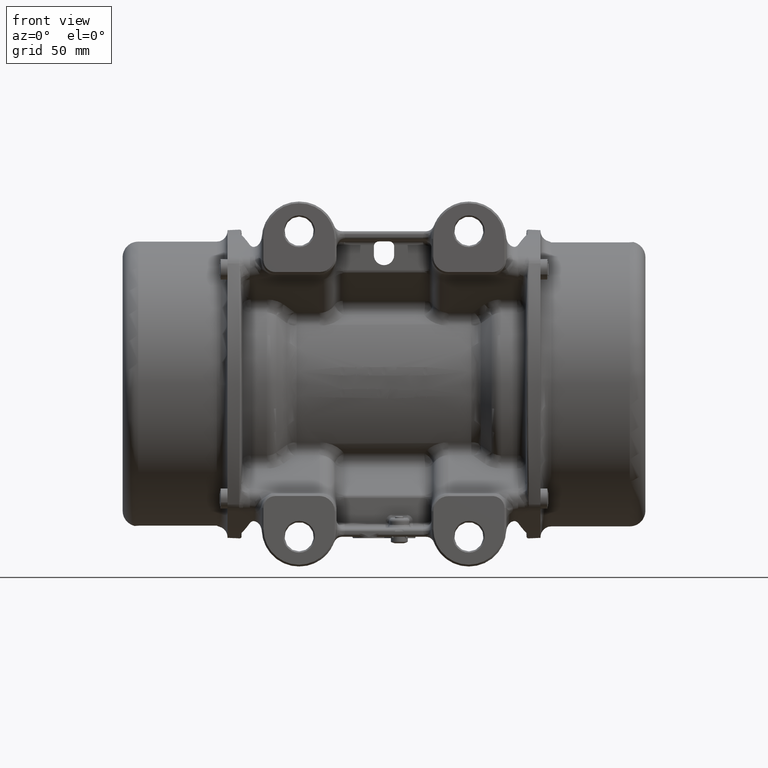
[diagram: clean part render]
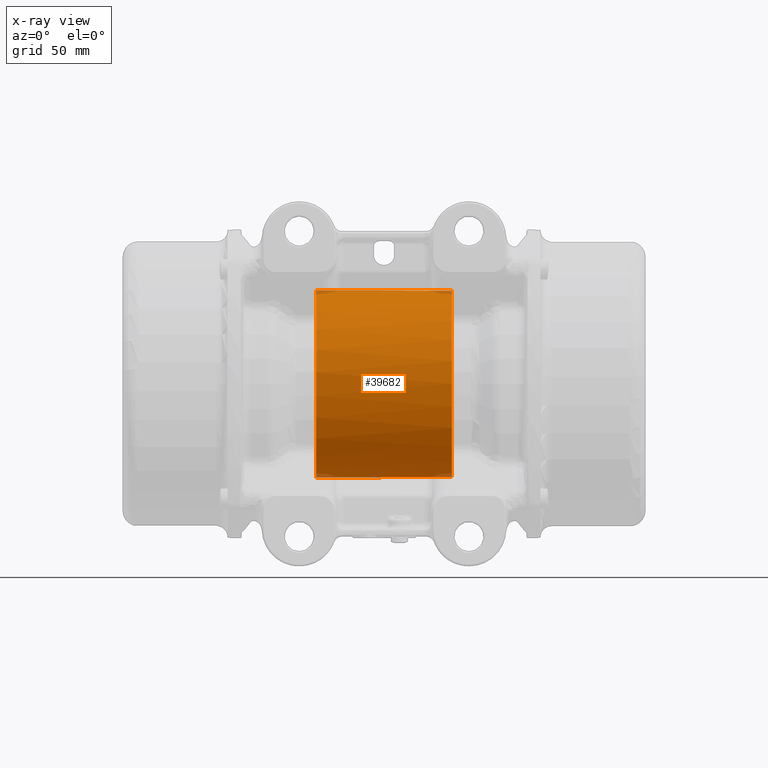
[diagram: x-ray — body ghosted, one internal face saturated and labeled with its STEP entity id]
A machine part, front view, then the same camera in x-ray: the body is ghosted and one INTERNAL B-rep face — a face not visible from any outside direction — is saturated and labeled: STEP entity #39682.
In plain terms, the highlighted cylindrical surface (bore or boss wall) has radius 55.2 mm, axis along (1, 0, 0).
Its self-contained STEP definition (entity closure, byte-faithful):
#226 = CARTESIAN_POINT ( 'NONE',  ( 35.74694576465260100, 41.57869656752910000, -36.30774010793484800 ) ) ;
#332 = CARTESIAN_POINT ( 'NONE',  ( -1.987038015383539400, 55.18774724091986200, 1.169796448368857000 ) ) ;
#1295 = ORIENTED_EDGE ( 'NONE', *, *, #7813, .F. ) ;
#1577 = CARTESIAN_POINT ( 'NONE',  ( 23.85161191306835700, 55.19997215717662400, 0.5718117369568123100 ) ) ;
#1605 = CARTESIAN_POINT ( 'NONE',  ( 8.828080934234131800, 42.21512129042131500, -35.56704338319838900 ) ) ;
#2038 = CARTESIAN_POINT ( 'NONE',  ( 23.54431040530701200, 55.15685790800752400, -2.252949050198740400 ) ) ;
#2099 = VERTEX_POINT ( 'NONE', #57742 ) ;
#2118 = CARTESIAN_POINT ( 'NONE',  ( 19.91307813441354900, 40.19297536149102300, -37.83840224780684000 ) ) ;
#2977 = CARTESIAN_POINT ( 'NONE',  ( 23.11773395249674900, 55.10012596660519800, 3.319053850759130100 ) ) ;
#3005 = CARTESIAN_POINT ( 'NONE',  ( 9.777333570779735100, 40.66541257903294600, -37.32799287688860100 ) ) ;
#3124 = CARTESIAN_POINT ( 'NONE',  ( 13.06224484391748100, 50.44664187581288000, 25.07531897438062200 ) ) ;
#3325 = VECTOR ( 'NONE', #86982, 1000.000000000000000 ) ;
#3408 = EDGE_CURVE ( 'NONE', #81553, #131561, #91430, .T. ) ;
#3956 = VERTEX_POINT ( 'NONE', #93318 ) ;
#4392 = CARTESIAN_POINT ( 'NONE',  ( 9.012907037198955300, 41.63966998489412700, -36.23898516558366400 ) ) ;
#4572 = CARTESIAN_POINT ( 'NONE',  ( 17.89361547813875900, 54.42360071865135800, -14.55015405521136400 ) ) ;
#5055 = LINE ( 'NONE', #33433, #64675 ) ;
#5767 = CYLINDRICAL_SURFACE ( 'NONE', #133742, 55.19999999999999600 ) ;
#7561 = ORIENTED_EDGE ( 'NONE', *, *, #76531, .F. ) ;
#7813 = EDGE_CURVE ( 'NONE', #33736, #100793, #87887, .T. ) ;
#8029 = CARTESIAN_POINT ( 'NONE',  ( -2.245549349864905500, 55.17888766574259300, -1.530328632593510800 ) ) ;
#8552 = DIRECTION ( 'NONE',  ( 1.000000000000000000, 1.220392953841899900E-016, 0.0000000000000000000 ) ) ;
#8700 = CARTESIAN_POINT ( 'NONE',  ( -31.15253501951245200, 53.01658658224438600, -15.37188590701616400 ) ) ;
#9046 = CARTESIAN_POINT ( 'NONE',  ( 9.111467318992707100, 41.44863757087033200, 36.45717251108697400 ) ) ;
#9905 = CARTESIAN_POINT ( 'NONE',  ( -3.689450560597351100, 55.15177302770471400, -2.307130046861670900 ) ) ;
#10001 = CARTESIAN_POINT ( 'NONE',  ( 8.806737659576132400, 42.79497268961358700, 34.86716154941884600 ) ) ;
#10300 = CARTESIAN_POINT ( 'NONE',  ( -30.38673980722447300, 53.26557116767043700, 14.48610340358797400 ) ) ;
#10372 = CARTESIAN_POINT ( 'NONE',  ( -1.752603799018653600, 55.19684874769989600, 0.6081926776155892600 ) ) ;
#10460 = CARTESIAN_POINT ( 'NONE',  ( 10.07795345129993000, 40.42950190173263500, 37.58365756177760600 ) ) ;
#10477 = B_SPLINE_CURVE_WITH_KNOTS ( 'NONE', 3,
 ( #76908, #53092, #119863, #53566, #33194, #54508, #10300, #44105, #86897, #65524, #130767, #11732, #87832, #120344, #11250, #129378 ),
 .UNSPECIFIED., .F., .F.,
 ( 4, 2, 2, 2, 2, 2, 2, 4 ),
 ( 0.0000000000000000000, 0.0005962286047909162100, 0.001192457209581832400, 0.001788685814372748600, 0.002384914419163664800, 0.002981143023954580800, 0.003577371628745497300, 0.004769828838327325400 ),
 .UNSPECIFIED. ) ;
#10849 = CARTESIAN_POINT ( 'NONE',  ( -5.170452138132356300, 55.16337329358172100, 2.012308902354663000 ) ) ;
#11250 = CARTESIAN_POINT ( 'NONE',  ( -32.59639918337673900, 52.83029433951702500, 16.00000000000000400 ) ) ;
#11312 = CARTESIAN_POINT ( 'NONE',  ( -4.609052008624803200, 55.15426276518671500, 2.246821253748706700 ) ) ;
#11378 = CARTESIAN_POINT ( 'NONE',  ( 9.058354947079701300, 43.52710127163235400, -33.94748083273719900 ) ) ;
#11715 = CARTESIAN_POINT ( 'NONE',  ( 35.74694576465260100, 41.57869656752910000, -36.30774010793484800 ) ) ;
#11732 = CARTESIAN_POINT ( 'NONE',  ( -31.47427311636368000, 52.95269487178545400, 15.59055664523569500 ) ) ;
#11797 = CARTESIAN_POINT ( 'NONE',  ( -5.851100940024367400, 55.18208389329180400, 1.411914400282767000 ) ) ;
#12544 = CARTESIAN_POINT ( 'NONE',  ( 23.78814026476473100, 55.19082247590900900, 1.149469842707386600 ) ) ;
#13074 = CARTESIAN_POINT ( 'NONE',  ( 40.00000000000000000, 42.54701481134344500, -35.16804701207220100 ) ) ;
#13150 = EDGE_CURVE ( 'NONE', #131561, #33736, #59809, .T. ) ;
#15335 = CARTESIAN_POINT ( 'NONE',  ( 10.81983769026495100, 40.07292408353643500, -37.96322537600867300 ) ) ;
#15986 = CARTESIAN_POINT ( 'NONE',  ( 13.06224484391316800, 50.44664187580942600, -25.07531897438995500 ) ) ;
#16824 = VERTEX_POINT ( 'NONE', #41851 ) ;
#18687 = CARTESIAN_POINT ( 'NONE',  ( -30.99978117295659900, 53.05346779761956800, -15.24435648257525800 ) ) ;
#18946 = CARTESIAN_POINT ( 'NONE',  ( -1.793223483788915800, 55.19518824895260400, -0.7422999547950034400 ) ) ;
#19416 = CARTESIAN_POINT ( 'NONE',  ( -1.979887624005977500, 55.18800948058689200, -1.157426044692177400 ) ) ;
#19729 = ORIENTED_EDGE ( 'NONE', *, *, #30981, .F. ) ;
#20838 = CARTESIAN_POINT ( 'NONE',  ( -2.824686910699169200, 55.16291349736892600, -2.026477990559558200 ) ) ;
#20938 = CARTESIAN_POINT ( 'NONE',  ( 8.956155020539970500, 43.35047889697859300, 34.17394417551873400 ) ) ;
#21304 = CARTESIAN_POINT ( 'NONE',  ( -4.753732914292117900, 55.15607202476989100, 2.202532450465322500 ) ) ;
#21506 = CARTESIAN_POINT ( 'NONE',  ( 101.5000000000000000, 3.435607026918164300E-014, 0.0000000000000000000 ) ) ;
#21566 = EDGE_CURVE ( 'NONE', #22492, #44344, #23369, .T. ) ;
#21677 = ORIENTED_EDGE ( 'NONE', *, *, #39941, .F. ) ;
#21990 = DIRECTION ( 'NONE',  ( 1.000000000000000000, 1.220392953841899900E-016, 0.0000000000000000000 ) ) ;
#22249 = CARTESIAN_POINT ( 'NONE',  ( -5.854835158794403900, 55.18184339590290900, -1.432116805362589900 ) ) ;
#22416 = VERTEX_POINT ( 'NONE', #116037 ) ;
#22492 = VERTEX_POINT ( 'NONE', #94037 ) ;
#23170 = CARTESIAN_POINT ( 'NONE',  ( -6.027769802657070700, 55.18823119302151500, -1.173527215368016100 ) ) ;
#23369 = CIRCLE ( 'NONE', #139819, 55.19999999999999600 ) ;
#24119 = CARTESIAN_POINT ( 'NONE',  ( 23.11773395249674900, 55.10012596660519800, -3.319053850759119900 ) ) ;
#24504 = B_SPLINE_CURVE_WITH_KNOTS ( 'NONE', 3,
 ( #118788, #32111, #43013, #129689 ),
 .UNSPECIFIED., .F., .F.,
 ( 4, 4 ),
 ( 0.0001268968777257475900, 0.02387769832308420800 ),
 .UNSPECIFIED. ) ;
#24567 = VERTEX_POINT ( 'NONE', #53145 ) ;
#24571 = CARTESIAN_POINT ( 'NONE',  ( 23.11773395249674900, 55.10012596660519800, 3.319053850759130100 ) ) ;
#24744 = CARTESIAN_POINT ( 'NONE',  ( -33.00000000000000000, 52.83029433951699600, 16.00000000000000000 ) ) ;
#25942 = B_SPLINE_CURVE_WITH_KNOTS ( 'NONE', 3,
 ( #107054, #118995, #75115, #74653, #42304, #118532, #40894, #53155, #129440, #64202, #9905, #138955, #86039, #20838, #62319, #8029, #73705, #19416, #30421, #18946, #95108, #117129, #51767, #117604, #120884, #10372, #108456, #120400, #332, #43224, #45093, #98388, #76964, #108929, #140803, #76512, #53638, #55511, #109881, #11312, #21304, #32782, #10849, #54572, #99328, #97465, #11797, #75572, #32327, #98869, #109405, #119467, #44172, #76036, #87430, #77432, #33727, #23170, #22249, #33261 ),
 .UNSPECIFIED., .T., .F.,
 ( 4, 2, 2, 2, 2, 2, 2, 2, 2, 2, 2, 2, 2, 2, 2, 2, 2, 2, 2, 2, 2, 2, 2, 2, 2, 2, 2, 2, 2, 4 ),
 ( 0.0000000000000000000, 0.0004539464512785690900, 0.0009078929025571386100, 0.001361839353835708000, 0.001815785805114277600, 0.002269732256392847100, 0.002723678707671416500, 0.003631571610228555700, 0.004085518061507125600, 0.004539464512785695800, 0.004993410964064265300, 0.005447357415342834700, 0.005901303866621405000, 0.006355250317899974400, 0.006809196769178544600, 0.007263143220457114900, 0.007717089671735684300, 0.008171036123014252900, 0.009078929025571393400, 0.009532875476849960200, 0.009986821928128528800, 0.01044076837940709600, 0.01089471483068566200, 0.01134866128196423100, 0.01180260773324279800, 0.01225655418452136500, 0.01271050063579993500, 0.01316444708707850300, 0.01361839353835707200, 0.01452628644091421100 ),
 .UNSPECIFIED. ) ;
#26313 = CARTESIAN_POINT ( 'NONE',  ( 9.875399509827582600, 40.58549866814140500, -37.41482848362941400 ) ) ;
#26795 = CARTESIAN_POINT ( 'NONE',  ( 11.69137069625126600, 39.89955491730370300, -38.14532794569356600 ) ) ;
#28865 = AXIS2_PLACEMENT_3D ( 'NONE', #94212, #105658, #73262 ) ;
#30421 = CARTESIAN_POINT ( 'NONE',  ( -1.908940177586634400, 55.19068451334610600, -1.023795882245004600 ) ) ;
#30513 = CARTESIAN_POINT ( 'NONE',  ( 10.95910005847187700, 40.02800691098693200, 38.01054211882426200 ) ) ;
#30981 = EDGE_CURVE ( 'NONE', #41900, #72092, #66318, .T. ) ;
#31355 = CARTESIAN_POINT ( 'NONE',  ( 38.29592242179560200, 42.02465479041535400, 35.79084159329924800 ) ) ;
#31934 = CARTESIAN_POINT ( 'NONE',  ( 8.871663451221010600, 42.02266091464816400, 35.79416469147597000 ) ) ;
#32111 = CARTESIAN_POINT ( 'NONE',  ( 27.83001194953311200, 40.77490700410231000, 37.22821938487482600 ) ) ;
#32327 = CARTESIAN_POINT ( 'NONE',  ( -6.090917268736136600, 55.19067899621504100, 1.024129188607819400 ) ) ;
#32746 = CARTESIAN_POINT ( 'NONE',  ( 23.11773395249674900, 55.10012596660519800, 3.319053850759130100 ) ) ;
#32782 = CARTESIAN_POINT ( 'NONE',  ( -5.034511098754216500, 55.16062179345260600, 2.085481660584910500 ) ) ;
#33194 = CARTESIAN_POINT ( 'NONE',  ( -30.14932090940984100, 53.40730549933712700, 13.95472874952411300 ) ) ;
#33261 = CARTESIAN_POINT ( 'NONE',  ( -5.637024425156610600, 55.17538344035390500, -1.648351361184295300 ) ) ;
#33433 = CARTESIAN_POINT ( 'NONE',  ( 101.5000000000000000, 52.83029433951699600, -16.00000000000000000 ) ) ;
#33727 = CARTESIAN_POINT ( 'NONE',  ( -6.202547195298880200, 55.19501895794127200, -0.7545789007161534100 ) ) ;
#33736 = VERTEX_POINT ( 'NONE', #32746 ) ;
#36979 = EDGE_CURVE ( 'NONE', #16824, #52235, #42202, .T. ) ;
#37754 = CARTESIAN_POINT ( 'NONE',  ( 10.19404478550018600, 40.36605366308308600, -37.65143657650472900 ) ) ;
#39682 = ADVANCED_FACE ( 'NONE', ( #118322, #126768, #78984 ), #5767, .F. ) ;
#39941 = EDGE_CURVE ( 'NONE', #22416, #16824, #82364, .T. ) ;
#40158 = CARTESIAN_POINT ( 'NONE',  ( -31.47927075468987800, 52.95182174402299300, -15.59352119183326700 ) ) ;
#40265 = EDGE_CURVE ( 'NONE', #100793, #128793, #58694, .T. ) ;
#40406 = CARTESIAN_POINT ( 'NONE',  ( 35.74694576465260100, 41.57869656752919200, 36.30774010793474800 ) ) ;
#40894 = CARTESIAN_POINT ( 'NONE',  ( -4.595251086904439400, 55.15411204646967700, -2.250505702839246800 ) ) ;
#41189 = VERTEX_POINT ( 'NONE', #77549 ) ;
#41851 = CARTESIAN_POINT ( 'NONE',  ( 40.00000000000000000, 42.54701481134344500, 35.16804701207220100 ) ) ;
#41900 = VERTEX_POINT ( 'NONE', #24744 ) ;
#41916 = CARTESIAN_POINT ( 'NONE',  ( 10.82212754077453500, 40.07215896393482500, 37.96403208395129500 ) ) ;
#42202 = B_SPLINE_CURVE_WITH_KNOTS ( 'NONE', 3,
 ( #127094, #116166, #137987, #85543, #31355, #116638, #106076, #40406 ),
 .UNSPECIFIED., .F., .F.,
 ( 4, 2, 2, 4 ),
 ( 0.01609785146867748900, 0.01721758472109111500, 0.01833731797350474100, 0.02057678447833199600 ),
 .UNSPECIFIED. ) ;
#42304 = CARTESIAN_POINT ( 'NONE',  ( -5.022019338329519300, 55.16038771182311300, -2.091642034779955600 ) ) ;
#42396 = VERTEX_POINT ( 'NONE', #125568 ) ;
#43013 = CARTESIAN_POINT ( 'NONE',  ( 19.91307813441362400, 40.19297536149104400, 37.83840224780683300 ) ) ;
#43224 = CARTESIAN_POINT ( 'NONE',  ( -2.156350280015265400, 55.18183318514445500, 1.421673515672355700 ) ) ;
#44105 = CARTESIAN_POINT ( 'NONE',  ( -30.59989535131576900, 53.17634566012593200, 14.81028446291329300 ) ) ;
#44172 = CARTESIAN_POINT ( 'NONE',  ( -6.323739784594932800, 55.20001681504152900, 0.1454197131701008300 ) ) ;
#44344 = VERTEX_POINT ( 'NONE', #63595 ) ;
#45093 = CARTESIAN_POINT ( 'NONE',  ( -2.254857481705975400, 55.17859120684028100, 1.540939895783995700 ) ) ;
#45504 = CARTESIAN_POINT ( 'NONE',  ( 17.89361547814113300, 54.42360071865160600, 14.55015405520629000 ) ) ;
#46094 = EDGE_CURVE ( 'NONE', #3956, #2099, #5055, .T. ) ;
#47244 = CARTESIAN_POINT ( 'NONE',  ( 9.111474039992499400, 41.44871853712743400, -36.45707531330109000 ) ) ;
#48383 = AXIS2_PLACEMENT_3D ( 'NONE', #52751, #8552, #139943 ) ;
#49890 = ORIENTED_EDGE ( 'NONE', *, *, #46094, .F. ) ;
#51039 = CARTESIAN_POINT ( 'NONE',  ( -30.58928746848588200, 53.17200883265874000, -14.82770637634899200 ) ) ;
#51767 = CARTESIAN_POINT ( 'NONE',  ( -1.676213497847047800, 55.20001878061529500, -0.1464337806610539200 ) ) ;
#51869 = CARTESIAN_POINT ( 'NONE',  ( 11.99614431929414100, 39.89983304049965800, 38.14503012635130100 ) ) ;
#52235 = VERTEX_POINT ( 'NONE', #78516 ) ;
#52751 = CARTESIAN_POINT ( 'NONE',  ( -40.00000000000000000, 1.708750997231874800E-014, 0.0000000000000000000 ) ) ;
#53092 = CARTESIAN_POINT ( 'NONE',  ( -30.00000000000000700, 53.59988853262715500, 13.19593090412173800 ) ) ;
#53145 = CARTESIAN_POINT ( 'NONE',  ( 35.74694576465260100, 41.57869656752910000, -36.30774010793484800 ) ) ;
#53155 = CARTESIAN_POINT ( 'NONE',  ( -4.297251373861061400, 55.15170176775298200, -2.308818674966375300 ) ) ;
#53266 = CARTESIAN_POINT ( 'NONE',  ( 8.887413873263668100, 43.16859268827016600, 34.40350632322628900 ) ) ;
#53566 = CARTESIAN_POINT ( 'NONE',  ( -30.09330102073912600, 53.45603340027612700, 13.76701228615879000 ) ) ;
#53638 = CARTESIAN_POINT ( 'NONE',  ( -3.702887437054121400, 55.15107036745394700, 2.323669061504013600 ) ) ;
#54508 = CARTESIAN_POINT ( 'NONE',  ( -30.29657148753943800, 53.31185723454133600, 14.31504849367278000 ) ) ;
#54572 = CARTESIAN_POINT ( 'NONE',  ( -5.421765322644676900, 55.16927561820418900, 1.843412055987337700 ) ) ;
#54817 = CIRCLE ( 'NONE', #48383, 55.19999999999999600 ) ;
#54941 = CARTESIAN_POINT ( 'NONE',  ( 36.50281634971210600, 41.65543851103407700, -36.21985719444289500 ) ) ;
#55511 = CARTESIAN_POINT ( 'NONE',  ( -4.157334969011487600, 55.15111857425123500, 2.322524521871134800 ) ) ;
#55536 = CARTESIAN_POINT ( 'NONE',  ( 101.5000000000000000, 52.83029433951699600, 16.00000000000000000 ) ) ;
#55838 = CARTESIAN_POINT ( 'NONE',  ( 8.795258548952288500, 42.60141392565039100, -35.10342678603758100 ) ) ;
#55911 = B_SPLINE_CURVE_WITH_KNOTS ( 'NONE', 3,
 ( #226, #54941, #88737, #100601, #79174, #13074 ),
 .UNSPECIFIED., .F., .F.,
 ( 4, 2, 4 ),
 ( 1.206497075819070400E-006, 0.002255361555572178100, 0.004509516614068537200 ),
 .UNSPECIFIED. ) ;
#55988 = DIRECTION ( 'NONE',  ( 1.000000000000000000, 0.0000000000000000000, 0.0000000000000000000 ) ) ;
#56739 = CARTESIAN_POINT ( 'NONE',  ( 23.11773395249674900, 55.10012596660519800, -3.319053850759119900 ) ) ;
#57679 = CARTESIAN_POINT ( 'NONE',  ( 23.54200521625966800, 55.15654269956115700, 2.259195413877224100 ) ) ;
#57742 = CARTESIAN_POINT ( 'NONE',  ( -33.00000000000000000, 52.83029433951699600, -16.00000000000000000 ) ) ;
#58627 = CARTESIAN_POINT ( 'NONE',  ( 8.871658525046234100, 42.02271650734913800, -35.79409811163363000 ) ) ;
#58694 =( BOUNDED_CURVE ( )  B_SPLINE_CURVE ( 3, ( #69794, #4572, #15986, #60244 ),
 .UNSPECIFIED., .F., .T. ) 
 B_SPLINE_CURVE_WITH_KNOTS ( ( 4, 4 ),
 ( 1.672239144377841000, 2.274449106646164100 ),
 .UNSPECIFIED. ) 
 CURVE ( )  GEOMETRIC_REPRESENTATION_ITEM ( )  RATIONAL_B_SPLINE_CURVE ( ( 1.000000000000000000, 0.9700062411426927400, 0.9700062411426927400, 1.000000000000000000 ) ) 
 REPRESENTATION_ITEM ( '' )  );
#59809 =( BOUNDED_CURVE ( )  B_SPLINE_CURVE ( 3, ( #121316, #3124, #45504, #24571 ),
 .UNSPECIFIED., .F., .T. ) 
 B_SPLINE_CURVE_WITH_KNOTS ( ( 4, 4 ),
 ( 4.008736200533687300, 4.610946162801744700 ),
 .UNSPECIFIED. ) 
 CURVE ( )  GEOMETRIC_REPRESENTATION_ITEM ( )  RATIONAL_B_SPLINE_CURVE ( ( 1.000000000000000000, 0.9700062411427189400, 0.9700062411427189400, 1.000000000000000000 ) ) 
 REPRESENTATION_ITEM ( '' )  );
#60244 = CARTESIAN_POINT ( 'NONE',  ( 9.058354947079701300, 43.52710127163235400, -33.94748083273719900 ) ) ;
#61411 = ORIENTED_EDGE ( 'NONE', *, *, #40265, .F. ) ;
#62319 = CARTESIAN_POINT ( 'NONE',  ( -2.566001548493638000, 55.16932197332808100, -1.852596019848627300 ) ) ;
#63595 = CARTESIAN_POINT ( 'NONE',  ( -30.00000000000000000, 53.64736713017700300, 13.00000000000000000 ) ) ;
#63824 = CARTESIAN_POINT ( 'NONE',  ( 10.55938041023576800, 40.17545794930093500, 37.85469897735418200 ) ) ;
#64202 = CARTESIAN_POINT ( 'NONE',  ( -3.840112963478889500, 55.15112567507451000, -2.322355930313038600 ) ) ;
#64283 = CARTESIAN_POINT ( 'NONE',  ( 11.69215737932355600, 39.89956504885133600, 38.14531716003343600 ) ) ;
#64675 = VECTOR ( 'NONE', #119627, 1000.000000000000000 ) ;
#65524 = CARTESIAN_POINT ( 'NONE',  ( -30.99873120366898900, 53.05372517681262000, 15.24346518948857500 ) ) ;
#66318 = LINE ( 'NONE', #55536, #3325 ) ;
#66383 = CARTESIAN_POINT ( 'NONE',  ( 9.058354947079701300, 43.52710127163235400, -33.94748083273719900 ) ) ;
#66851 = CARTESIAN_POINT ( 'NONE',  ( 8.887414539062371300, 43.16858151922135500, -34.40351978982762700 ) ) ;
#67827 = CARTESIAN_POINT ( 'NONE',  ( 11.99614431929403900, 39.89983304049960100, -38.14503012635140100 ) ) ;
#69794 = CARTESIAN_POINT ( 'NONE',  ( 23.11773395249674900, 55.10012596660519800, -3.319053850759119900 ) ) ;
#72092 = VERTEX_POINT ( 'NONE', #86912 ) ;
#72490 = CARTESIAN_POINT ( 'NONE',  ( -32.01788336574578900, 52.87806318133919300, -15.84161906942489400 ) ) ;
#72860 = ORIENTED_EDGE ( 'NONE', *, *, #21566, .F. ) ;
#73262 = DIRECTION ( 'NONE',  ( -2.514091994169285700E-016, 1.000000000000000000, 0.0000000000000000000 ) ) ;
#73705 = CARTESIAN_POINT ( 'NONE',  ( -2.147805606675017300, 55.18212028626194900, -1.410541098585879100 ) ) ;
#74653 = CARTESIAN_POINT ( 'NONE',  ( -5.158172678821011400, 55.16311313823303700, -2.019394651096110000 ) ) ;
#75115 = CARTESIAN_POINT ( 'NONE',  ( -5.410424975044497500, 55.16898356628116300, -1.852095602762875700 ) ) ;
#75206 = CARTESIAN_POINT ( 'NONE',  ( 8.828090946281047700, 42.21509343520829600, 35.56707574435371600 ) ) ;
#75572 = CARTESIAN_POINT ( 'NONE',  ( -6.018643632593888300, 55.18795604227103300, 1.159910753626380200 ) ) ;
#76036 = CARTESIAN_POINT ( 'NONE',  ( -6.322923662811723100, 55.19998247762425300, -0.1579168889693537100 ) ) ;
#76129 = CARTESIAN_POINT ( 'NONE',  ( 9.359485046809247400, 41.08489848321174500, 36.86659871223145800 ) ) ;
#76512 = CARTESIAN_POINT ( 'NONE',  ( -3.396916016221811900, 55.15368847552110800, 2.263600994248569500 ) ) ;
#76531 = EDGE_CURVE ( 'NONE', #24567, #22416, #55911, .T. ) ;
#76908 = CARTESIAN_POINT ( 'NONE',  ( -30.00000000000000000, 53.64736713017700300, 13.00000000000000000 ) ) ;
#76964 = CARTESIAN_POINT ( 'NONE',  ( -2.587163488136567500, 55.16904291643487600, 1.850363550169414000 ) ) ;
#77432 = CARTESIAN_POINT ( 'NONE',  ( -6.247624620368206600, 55.19685797796603300, -0.6076494102478053900 ) ) ;
#77549 = CARTESIAN_POINT ( 'NONE',  ( -5.637024425156610600, 55.17538344035389700, -1.648351361184295000 ) ) ;
#77721 = CARTESIAN_POINT ( 'NONE',  ( 23.85200150178332000, 55.20002771132875100, -0.5664234141834394400 ) ) ;
#77875 = DIRECTION ( 'NONE',  ( 0.0000000000000000000, 0.0000000000000000000, -1.000000000000000000 ) ) ;
#78261 = ORIENTED_EDGE ( 'NONE', *, *, #113165, .F. ) ;
#78516 = CARTESIAN_POINT ( 'NONE',  ( 35.74694576465260100, 41.57869656752919200, 36.30774010793474800 ) ) ;
#78984 = FACE_BOUND ( 'NONE', #91581, .T. ) ;
#79118 = CARTESIAN_POINT ( 'NONE',  ( 23.79120420009166600, 55.19125516577657500, -1.131418107095359900 ) ) ;
#79141 = CARTESIAN_POINT ( 'NONE',  ( 10.55618496120112200, 40.17685221473013300, -37.85322009644934800 ) ) ;
#79174 = CARTESIAN_POINT ( 'NONE',  ( 39.33501274803339200, 42.30942253315650000, -35.45549095729932500 ) ) ;
#80523 = CARTESIAN_POINT ( 'NONE',  ( 11.24151897559808900, 39.95795989510434500, -38.08417098129649500 ) ) ;
#81553 = VERTEX_POINT ( 'NONE', #51869 ) ;
#81620 = ORIENTED_EDGE ( 'NONE', *, *, #36979, .F. ) ;
#82364 = CIRCLE ( 'NONE', #28865, 55.19999999999999600 ) ;
#83849 = ORIENTED_EDGE ( 'NONE', *, *, #100769, .F. ) ;
#84835 = CARTESIAN_POINT ( 'NONE',  ( -31.65226934474304300, 52.92397329151612000, -15.68755913421057000 ) ) ;
#84998 = ORIENTED_EDGE ( 'NONE', *, *, #87854, .F. ) ;
#85125 = EDGE_CURVE ( 'NONE', #52235, #81553, #24504, .T. ) ;
#85305 = CARTESIAN_POINT ( 'NONE',  ( -29.99999999999999600, 53.59991854906792200, -13.19580703465882400 ) ) ;
#85543 = CARTESIAN_POINT ( 'NONE',  ( 38.64817618803733300, 42.11741261556054600, 35.68176504692409200 ) ) ;
#86039 = CARTESIAN_POINT ( 'NONE',  ( -3.243480709565795400, 55.15611216523397800, -2.201522304506808900 ) ) ;
#86897 = CARTESIAN_POINT ( 'NONE',  ( -30.72451973958156300, 53.13300317008756900, 14.96479068505051300 ) ) ;
#86912 = CARTESIAN_POINT ( 'NONE',  ( -40.00000000000000000, 52.83029433951699600, 16.00000000000000000 ) ) ;
#86982 = DIRECTION ( 'NONE',  ( -1.000000000000000000, -1.220392953841899900E-016, -0.0000000000000000000 ) ) ;
#87348 = CARTESIAN_POINT ( 'NONE',  ( 27.83001194953307300, 40.77490700410231000, -37.22821938487481900 ) ) ;
#87430 = CARTESIAN_POINT ( 'NONE',  ( -6.307803975040323000, 55.19934032877454700, -0.3085380262596290100 ) ) ;
#87832 = CARTESIAN_POINT ( 'NONE',  ( -31.65087458979114700, 52.92419887149065300, 15.68679712609091000 ) ) ;
#87854 = EDGE_CURVE ( 'NONE', #44344, #41900, #10477, .T. ) ;
#87887 = B_SPLINE_CURVE_WITH_KNOTS ( 'NONE', 3,
 ( #2977, #88671, #57679, #12544, #1577, #77721, #79118, #2038, #89616, #56739 ),
 .UNSPECIFIED., .F., .F.,
 ( 4, 2, 2, 2, 4 ),
 ( 5.034359046336711200E-006, 0.001708659679808561800, 0.003412285000570787100, 0.005115910321333011800, 0.006819535642095236200 ),
 .UNSPECIFIED. ) ;
#87928 = B_SPLINE_CURVE_WITH_KNOTS ( 'NONE', 3,
 ( #117345, #107270, #126849, #116861, #72490, #84835, #40158, #8700, #18687, #51039, #94848, #106783, #128258, #127317, #85305, #139163 ),
 .UNSPECIFIED., .F., .F.,
 ( 4, 2, 2, 2, 2, 2, 2, 4 ),
 ( 0.0000000000000000000, 0.0005962177040657139500, 0.001192435408131427900, 0.001788653112197145500, 0.002384870816262863600, 0.003577306224394314000, 0.004173523928460039900, 0.004769741632525765400 ),
 .UNSPECIFIED. ) ;
#88217 = CARTESIAN_POINT ( 'NONE',  ( 8.956143034439996600, 43.35045818255912300, -34.17397073534554900 ) ) ;
#88671 = CARTESIAN_POINT ( 'NONE',  ( 23.36027950034819900, 55.13153570352174900, 2.797615953545687700 ) ) ;
#88737 = CARTESIAN_POINT ( 'NONE',  ( 37.23316908079537100, 41.77929889008563400, -36.07760273814708500 ) ) ;
#89004 = ORIENTED_EDGE ( 'NONE', *, *, #85125, .F. ) ;
#89616 = CARTESIAN_POINT ( 'NONE',  ( 23.36029846399455300, 55.13153815932088300, -2.797575184444919900 ) ) ;
#90581 = CARTESIAN_POINT ( 'NONE',  ( 11.39099993976744200, 39.93125921357913900, -38.11213801797788400 ) ) ;
#91041 = CARTESIAN_POINT ( 'NONE',  ( 9.358742686378272800, 41.08589666448538900, -36.86548119915088500 ) ) ;
#91430 = B_SPLINE_CURVE_WITH_KNOTS ( 'NONE', 3,
 ( #105237, #97554, #64283, #140455, #129064, #30513, #41916, #63824, #108088, #10460, #107610, #117694, #76129, #9046, #118153, #31934, #75206, #140903, #10001, #53266, #20938, #97097 ),
 .UNSPECIFIED., .F., .F.,
 ( 4, 2, 2, 2, 2, 2, 2, 2, 2, 2, 4 ),
 ( 0.0000000000000000000, 0.0004520396220384355200, 0.0009040792440768710300, 0.001356118866115306800, 0.001808158488153742100, 0.002712237732230617000, 0.003616316976307492400, 0.004520396220384367300, 0.005424475464461241800, 0.006328554708538118100, 0.007232633952614992600 ),
 .UNSPECIFIED. ) ;
#91505 = CARTESIAN_POINT ( 'NONE',  ( 11.84299664410981400, 39.89416240259781400, -38.15096163314961300 ) ) ;
#91581 = EDGE_LOOP ( 'NONE', ( #83849 ) ) ;
#91969 = CARTESIAN_POINT ( 'NONE',  ( 10.08349155175962500, 40.43610565051717700, -37.57623520819145600 ) ) ;
#93318 = CARTESIAN_POINT ( 'NONE',  ( -40.00000000000000000, 52.83029433951699600, -16.00000000000000000 ) ) ;
#94037 = CARTESIAN_POINT ( 'NONE',  ( -30.00000000000000000, 53.64736713017700300, -13.00000000000000000 ) ) ;
#94212 = CARTESIAN_POINT ( 'NONE',  ( 40.00000000000000000, 1.556630490420869900E-014, 0.0000000000000000000 ) ) ;
#94848 = CARTESIAN_POINT ( 'NONE',  ( -30.37034543020486400, 53.26424600448932300, -14.49471940404100500 ) ) ;
#95108 = CARTESIAN_POINT ( 'NONE',  ( -1.748938335541639700, 55.19699853709648400, -0.5944983238073509000 ) ) ;
#95557 = B_SPLINE_CURVE_WITH_KNOTS ( 'NONE', 3,
 ( #67827, #2118, #87348, #11715 ),
 .UNSPECIFIED., .F., .F.,
 ( 4, 4 ),
 ( 0.04786998696167228000, 0.07162078840703083000 ),
 .UNSPECIFIED. ) ;
#97097 = CARTESIAN_POINT ( 'NONE',  ( 9.058354947079109800, 43.52710127165665500, 33.94748083273759700 ) ) ;
#97465 = CARTESIAN_POINT ( 'NONE',  ( -5.754926090484908700, 55.17890034106777400, 1.529953322178701600 ) ) ;
#97554 = CARTESIAN_POINT ( 'NONE',  ( 11.84310213120691200, 39.89416630849542100, 38.15095754756725900 ) ) ;
#98388 = CARTESIAN_POINT ( 'NONE',  ( -2.469927444083560800, 55.17221026855904900, 1.754604632364778400 ) ) ;
#98869 = CARTESIAN_POINT ( 'NONE',  ( -6.206859735969722200, 55.19519145680198600, 0.7421109790223290300 ) ) ;
#99186 = CARTESIAN_POINT ( 'NONE',  ( 8.806749415083498200, 42.79504138083850500, -34.86707669884356900 ) ) ;
#99328 = CARTESIAN_POINT ( 'NONE',  ( -5.538783992862429200, 55.17245141308720200, 1.747113358676378500 ) ) ;
#100601 = CARTESIAN_POINT ( 'NONE',  ( 38.64928399892087900, 42.10626400944209300, -35.69545862215289800 ) ) ;
#100769 = EDGE_CURVE ( 'NONE', #41189, #41189, #25942, .T. ) ;
#100793 = VERTEX_POINT ( 'NONE', #24119 ) ;
#101504 = CARTESIAN_POINT ( 'NONE',  ( 9.507820581838410900, 40.91188928755163800, -37.05828712559682000 ) ) ;
#102456 = CARTESIAN_POINT ( 'NONE',  ( 11.99614431929403900, 39.89983304049960100, -38.14503012635140100 ) ) ;
#104181 = ORIENTED_EDGE ( 'NONE', *, *, #118400, .F. ) ;
#104576 = B_SPLINE_CURVE_WITH_KNOTS ( 'NONE', 3,
 ( #66383, #88217, #66851, #99186, #55838, #1605, #58627, #4392, #47244, #91041, #101504, #3005, #26313, #91969, #37754, #123514, #79141, #15335, #112071, #80523, #90581, #26795, #91505, #102456 ),
 .UNSPECIFIED., .F., .F.,
 ( 4, 2, 2, 2, 2, 2, 2, 2, 2, 2, 2, 4 ),
 ( 7.829532537633902000E-015, 0.0009006672202230719400, 0.001801334440438314200, 0.002702001660653556900, 0.003602668880868799200, 0.004503336101084041500, 0.004953669711191662800, 0.005404003321299284200, 0.005854336931406905500, 0.006304670541514526000, 0.006755004151622147300, 0.007205337761729768700 ),
 .UNSPECIFIED. ) ;
#105237 = CARTESIAN_POINT ( 'NONE',  ( 11.99614431929414100, 39.89983304049965800, 38.14503012635130100 ) ) ;
#105658 = DIRECTION ( 'NONE',  ( -1.000000000000000000, -3.061616997868385100E-016, -0.0000000000000000000 ) ) ;
#106076 = CARTESIAN_POINT ( 'NONE',  ( 36.49833627428877500, 41.65498365844184300, 36.22037808001328300 ) ) ;
#106783 = CARTESIAN_POINT ( 'NONE',  ( -30.15066477779424800, 53.40633078075000400, -13.95843941113313500 ) ) ;
#107054 = CARTESIAN_POINT ( 'NONE',  ( -5.637024425156610600, 55.17538344035390500, -1.648351361184295300 ) ) ;
#107270 = CARTESIAN_POINT ( 'NONE',  ( -32.79833756275063200, 52.83029433951699600, -15.99999999999999600 ) ) ;
#107610 = CARTESIAN_POINT ( 'NONE',  ( 9.872150308870685000, 40.57921718072119400, 37.42227969375554900 ) ) ;
#108088 = CARTESIAN_POINT ( 'NONE',  ( 10.43274399467683900, 40.23517402697444100, 37.79126560403709300 ) ) ;
#108365 = EDGE_CURVE ( 'NONE', #42396, #24567, #95557, .T. ) ;
#108456 = CARTESIAN_POINT ( 'NONE',  ( -1.797678144941454100, 55.19500941705264600, 0.7554473481054259100 ) ) ;
#108929 = CARTESIAN_POINT ( 'NONE',  ( -2.841449764056090300, 55.16311873123383700, 2.019275470813423300 ) ) ;
#109405 = CARTESIAN_POINT ( 'NONE',  ( -6.250379691475107100, 55.19697062552464200, 0.5971528297394667100 ) ) ;
#109765 = CARTESIAN_POINT ( 'NONE',  ( 9.058354947079109800, 43.52710127165665500, 33.94748083273759700 ) ) ;
#109881 = CARTESIAN_POINT ( 'NONE',  ( -4.311126560044232100, 55.15177836919940500, 2.307000137032200600 ) ) ;
#112071 = CARTESIAN_POINT ( 'NONE',  ( 10.95668760940304800, 40.02876651551483200, -38.00974203487565700 ) ) ;
#113165 = EDGE_CURVE ( 'NONE', #72092, #3956, #54817, .T. ) ;
#114409 = ORIENTED_EDGE ( 'NONE', *, *, #3408, .F. ) ;
#116037 = CARTESIAN_POINT ( 'NONE',  ( 40.00000000000000000, 42.54701481134344500, -35.16804701207220100 ) ) ;
#116166 = CARTESIAN_POINT ( 'NONE',  ( 39.67262634186598500, 42.43004797773213700, 35.30955585390211100 ) ) ;
#116638 = CARTESIAN_POINT ( 'NONE',  ( 37.22873444391485300, 41.77831903232112200, 36.07874537278795700 ) ) ;
#116861 = CARTESIAN_POINT ( 'NONE',  ( -32.21111343592520600, 52.86012607785907800, -15.90121877113497600 ) ) ;
#117129 = CARTESIAN_POINT ( 'NONE',  ( -1.690803743397272200, 55.19939908092144500, -0.2973497375214463900 ) ) ;
#117345 = CARTESIAN_POINT ( 'NONE',  ( -33.00000000000000000, 52.83029433951699600, -16.00000000000000000 ) ) ;
#117604 = CARTESIAN_POINT ( 'NONE',  ( -1.677126839354820200, 55.19998035281738400, 0.1602662814722903600 ) ) ;
#117694 = CARTESIAN_POINT ( 'NONE',  ( 9.509969513702310800, 40.90941711709258000, 37.06102367201342700 ) ) ;
#118153 = CARTESIAN_POINT ( 'NONE',  ( 9.013020906408908000, 41.63940345637544700, 36.23929270978104700 ) ) ;
#118322 = FACE_OUTER_BOUND ( 'NONE', #118552, .T. ) ;
#118400 = EDGE_CURVE ( 'NONE', #128793, #42396, #104576, .T. ) ;
#118532 = CARTESIAN_POINT ( 'NONE',  ( -4.740218618202377800, 55.15588776406365000, -2.207121174361907900 ) ) ;
#118552 = EDGE_LOOP ( 'NONE', ( #104181, #61411, #1295, #121915, #114409, #89004, #81620, #21677, #7561, #129710 ) ) ;
#118788 = CARTESIAN_POINT ( 'NONE',  ( 35.74694576465260100, 41.57869656752919200, 36.30774010793474800 ) ) ;
#118995 = CARTESIAN_POINT ( 'NONE',  ( -5.528119058337714400, 55.17215346257940900, -1.756468639095147800 ) ) ;
#119467 = CARTESIAN_POINT ( 'NONE',  ( -6.308944805873923500, 55.19938845269256700, 0.2994531446653874700 ) ) ;
#119627 = DIRECTION ( 'NONE',  ( 1.000000000000000000, 1.220392953841899900E-016, 0.0000000000000000000 ) ) ;
#119863 = CARTESIAN_POINT ( 'NONE',  ( -30.01900826023478800, 53.55210064948097000, 13.38845212138221000 ) ) ;
#120344 = CARTESIAN_POINT ( 'NONE',  ( -32.19677820767552800, 52.85549941833202300, 15.91734595639623300 ) ) ;
#120400 = CARTESIAN_POINT ( 'NONE',  ( -1.915240493842326000, 55.19044528058142900, 1.036588141661915200 ) ) ;
#120884 = CARTESIAN_POINT ( 'NONE',  ( -1.692671728810561300, 55.19932051675463200, 0.3114875569876099400 ) ) ;
#121316 = CARTESIAN_POINT ( 'NONE',  ( 9.058354947079109800, 43.52710127165665500, 33.94748083273759700 ) ) ;
#121915 = ORIENTED_EDGE ( 'NONE', *, *, #13150, .F. ) ;
#122258 = CARTESIAN_POINT ( 'NONE',  ( -30.00000000000000000, 1.830790292616064900E-014, 0.0000000000000000000 ) ) ;
#123514 = CARTESIAN_POINT ( 'NONE',  ( 10.42979632548907700, 40.23665354333239500, -37.78969007863518200 ) ) ;
#125568 = CARTESIAN_POINT ( 'NONE',  ( 11.99614431929403900, 39.89983304049960100, -38.14503012635140100 ) ) ;
#126353 = EDGE_CURVE ( 'NONE', #2099, #22492, #87928, .T. ) ;
#126768 = FACE_OUTER_BOUND ( 'NONE', #133875, .T. ) ;
#126849 = CARTESIAN_POINT ( 'NONE',  ( -32.60029570226959800, 52.83640142419357500, -15.97987396433800800 ) ) ;
#127094 = CARTESIAN_POINT ( 'NONE',  ( 40.00000000000000000, 42.54701481134344500, 35.16804701207220100 ) ) ;
#127317 = CARTESIAN_POINT ( 'NONE',  ( -30.01898743320870400, 53.55195960415142800, -13.38903809823085000 ) ) ;
#128258 = CARTESIAN_POINT ( 'NONE',  ( -30.09411973440759900, 53.45514450266269800, -13.77048455356572300 ) ) ;
#128793 = VERTEX_POINT ( 'NONE', #11378 ) ;
#129064 = CARTESIAN_POINT ( 'NONE',  ( 11.24583937253274100, 39.95704957159975400, 38.08512621701089500 ) ) ;
#129378 = CARTESIAN_POINT ( 'NONE',  ( -33.00000000000000000, 52.83029433951699600, 16.00000000000000000 ) ) ;
#129440 = CARTESIAN_POINT ( 'NONE',  ( -4.143249887234148300, 55.15107996899692500, -2.323441100658663500 ) ) ;
#129689 = CARTESIAN_POINT ( 'NONE',  ( 11.99614431929414100, 39.89983304049965800, 38.14503012635130100 ) ) ;
#129710 = ORIENTED_EDGE ( 'NONE', *, *, #108365, .F. ) ;
#130562 = DIRECTION ( 'NONE',  ( 0.0000000000000000000, 1.000000000000000000, 0.0000000000000000000 ) ) ;
#130767 = CARTESIAN_POINT ( 'NONE',  ( -31.14854032673866200, 53.01749918172986800, 15.36873876438758800 ) ) ;
#131561 = VERTEX_POINT ( 'NONE', #109765 ) ;
#133742 = AXIS2_PLACEMENT_3D ( 'NONE', #21506, #21990, #130562 ) ;
#133875 = EDGE_LOOP ( 'NONE', ( #78261, #19729, #84998, #72860, #138933, #49890 ) ) ;
#137987 = CARTESIAN_POINT ( 'NONE',  ( 39.33708591614843900, 42.32032783746757300, 35.44086136118225000 ) ) ;
#138933 = ORIENTED_EDGE ( 'NONE', *, *, #126353, .F. ) ;
#138955 = CARTESIAN_POINT ( 'NONE',  ( -3.389980823005891400, 55.15427135997298800, -2.246612539591651600 ) ) ;
#139163 = CARTESIAN_POINT ( 'NONE',  ( -30.00000000000000000, 53.64736713017700300, -13.00000000000000000 ) ) ;
#139819 = AXIS2_PLACEMENT_3D ( 'NONE', #122258, #55988, #77875 ) ;
#139943 = DIRECTION ( 'NONE',  ( -1.257045997084642900E-016, 1.000000000000000000, 0.0000000000000000000 ) ) ;
#140455 = CARTESIAN_POINT ( 'NONE',  ( 11.39415323380955200, 39.93083443902134600, 38.11258287403947500 ) ) ;
#140803 = CARTESIAN_POINT ( 'NONE',  ( -2.977059727467460200, 55.16040718919417400, 2.091121517583251200 ) ) ;
#140903 = CARTESIAN_POINT ( 'NONE',  ( 8.795262169664344000, 42.60128137180683400, 35.10358694247791100 ) ) ;